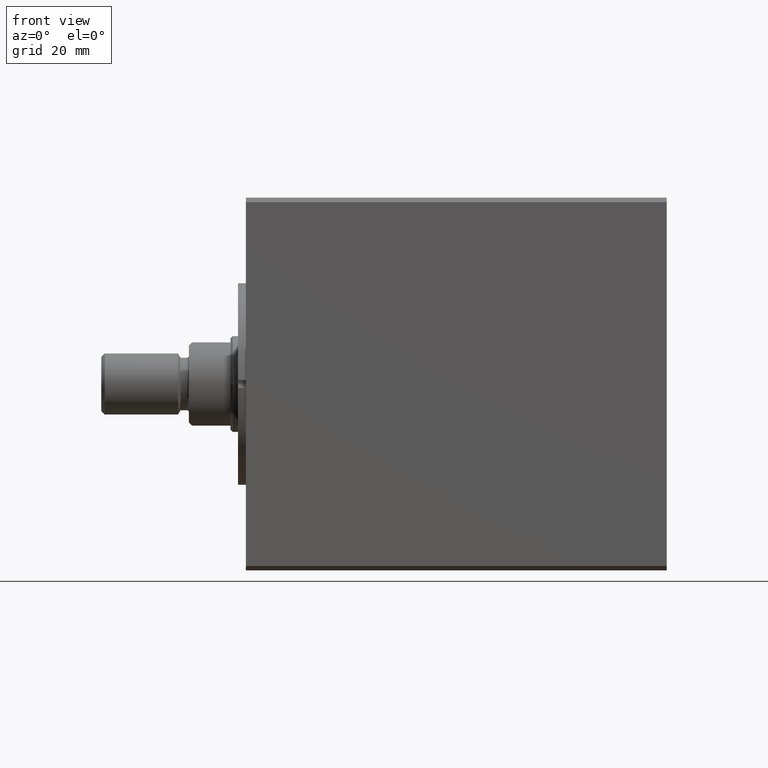
[diagram: clean part render]
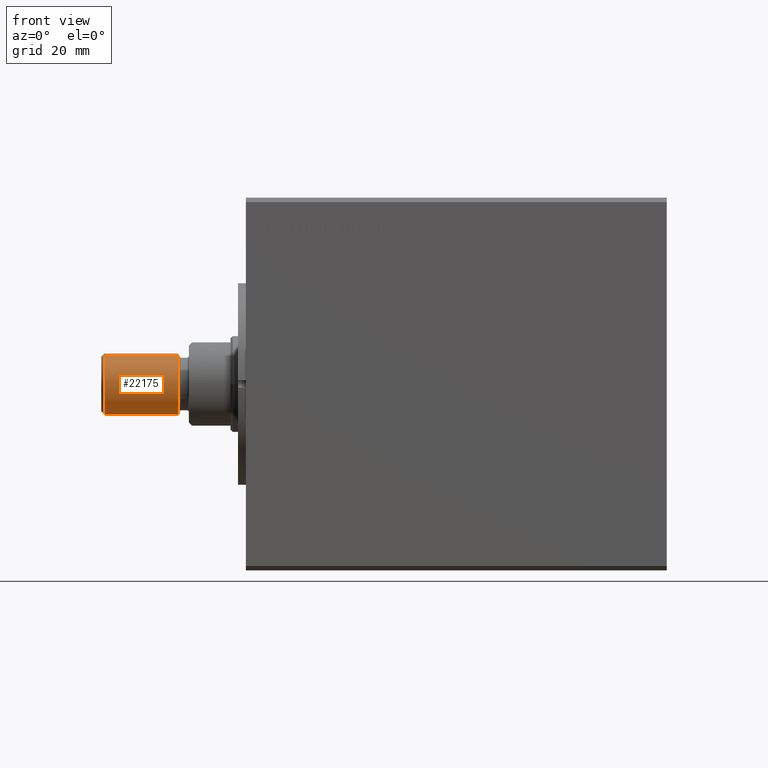
[diagram: same view with one face highlighted and labeled with its STEP entity id]
A machine part, front view. The second image highlights one B-rep face of the part: STEP entity #22175.
In plain terms, the highlighted cylindrical surface (edge-blend (fillet) strip) has radius 7 mm, axis along (1, -0, 0).
Its self-contained STEP definition (entity closure, byte-faithful):
#245 = VERTEX_POINT ( 'NONE', #18254 ) ;
#2077 = AXIS2_PLACEMENT_3D ( 'NONE', #33223, #40180, #2573 ) ;
#2479 = VERTEX_POINT ( 'NONE', #18758 ) ;
#2573 = DIRECTION ( 'NONE',  ( -2.775557561562891967E-17, -1.000000000000000000, 0.000000000000000000 ) ) ;
#3699 = EDGE_CURVE ( 'NONE', #40229, #245, #25753, .T. ) ;
#4936 = VECTOR ( 'NONE', #37913, 1000.000000000000000 ) ;
#6397 = CYLINDRICAL_SURFACE ( 'NONE', #2077, 6.999999999999679368 ) ;
#6700 = EDGE_CURVE ( 'NONE', #40229, #2479, #24180, .T. ) ;
#6834 = CARTESIAN_POINT ( 'NONE',  ( -1.942890293093935445E-16, -6.999999999999679368, 0.000000000000000000 ) ) ;
#13104 = ORIENTED_EDGE ( 'NONE', *, *, #25234, .F. ) ;
#14341 = DIRECTION ( 'NONE',  ( -1.000000000000000000, 2.775557561562891967E-17, -0.000000000000000000 ) ) ;
#16498 = CARTESIAN_POINT ( 'NONE',  ( 19.20000000000041851, -5.329070518200868540E-16, 0.000000000000000000 ) ) ;
#17060 = CARTESIAN_POINT ( 'NONE',  ( 2.500000000000419220, -6.938893903908393180E-17, 0.000000000000000000 ) ) ;
#18254 = CARTESIAN_POINT ( 'NONE',  ( 19.20000000000041851, 6.999999999999672262, 8.572527594031076787E-16 ) ) ;
#18758 = CARTESIAN_POINT ( 'NONE',  ( 2.500000000000419220, -6.999999999999685585, 8.572527594031086648E-16 ) ) ;
#19982 = VERTEX_POINT ( 'NONE', #31160 ) ;
#21559 = DIRECTION ( 'NONE',  ( 0.000000000000000000, -1.000000000000000000, 0.000000000000000000 ) ) ;
#22175 = ADVANCED_FACE ( 'NONE', ( #39958 ), #6397, .T. ) ;
#22424 = CIRCLE ( 'NONE', #28176, 6.999999999999685585 ) ;
#23272 = EDGE_LOOP ( 'NONE', ( #37425, #43677, #13104, #31691 ) ) ;
#23607 = CARTESIAN_POINT ( 'NONE',  ( 19.20000000000041851, -6.999999999999674039, 0.000000000000000000 ) ) ;
#24180 = LINE ( 'NONE', #6834, #4936 ) ;
#24389 = LINE ( 'NONE', #41484, #42623 ) ;
#25234 = EDGE_CURVE ( 'NONE', #2479, #19982, #22424, .T. ) ;
#25753 = CIRCLE ( 'NONE', #26459, 6.999999999999673150 ) ;
#26459 = AXIS2_PLACEMENT_3D ( 'NONE', #16498, #30254, #27094 ) ;
#27094 = DIRECTION ( 'NONE',  ( 0.000000000000000000, -1.000000000000000000, 0.000000000000000000 ) ) ;
#28150 = EDGE_CURVE ( 'NONE', #245, #19982, #24389, .T. ) ;
#28176 = AXIS2_PLACEMENT_3D ( 'NONE', #17060, #14341, #21559 ) ;
#30254 = DIRECTION ( 'NONE',  ( -1.000000000000000000, 2.775557561562891967E-17, -0.000000000000000000 ) ) ;
#30711 = DIRECTION ( 'NONE',  ( -1.000000000000000000, 2.775557561562891967E-17, -0.000000000000000000 ) ) ;
#31160 = CARTESIAN_POINT ( 'NONE',  ( 2.500000000000419220, 6.999999999999685585, 0.000000000000000000 ) ) ;
#31691 = ORIENTED_EDGE ( 'NONE', *, *, #6700, .F. ) ;
#33223 = CARTESIAN_POINT ( 'NONE',  ( 0.000000000000000000, 0.000000000000000000, 0.000000000000000000 ) ) ;
#37425 = ORIENTED_EDGE ( 'NONE', *, *, #3699, .T. ) ;
#37913 = DIRECTION ( 'NONE',  ( -1.000000000000000000, 2.775557561562891967E-17, -0.000000000000000000 ) ) ;
#39958 = FACE_OUTER_BOUND ( 'NONE', #23272, .T. ) ;
#40180 = DIRECTION ( 'NONE',  ( -1.000000000000000000, 2.775557561562891967E-17, -0.000000000000000000 ) ) ;
#40229 = VERTEX_POINT ( 'NONE', #23607 ) ;
#41484 = CARTESIAN_POINT ( 'NONE',  ( 1.942890293093935445E-16, 6.999999999999679368, 8.572527594031079745E-16 ) ) ;
#42623 = VECTOR ( 'NONE', #30711, 1000.000000000000000 ) ;
#43677 = ORIENTED_EDGE ( 'NONE', *, *, #28150, .T. ) ;